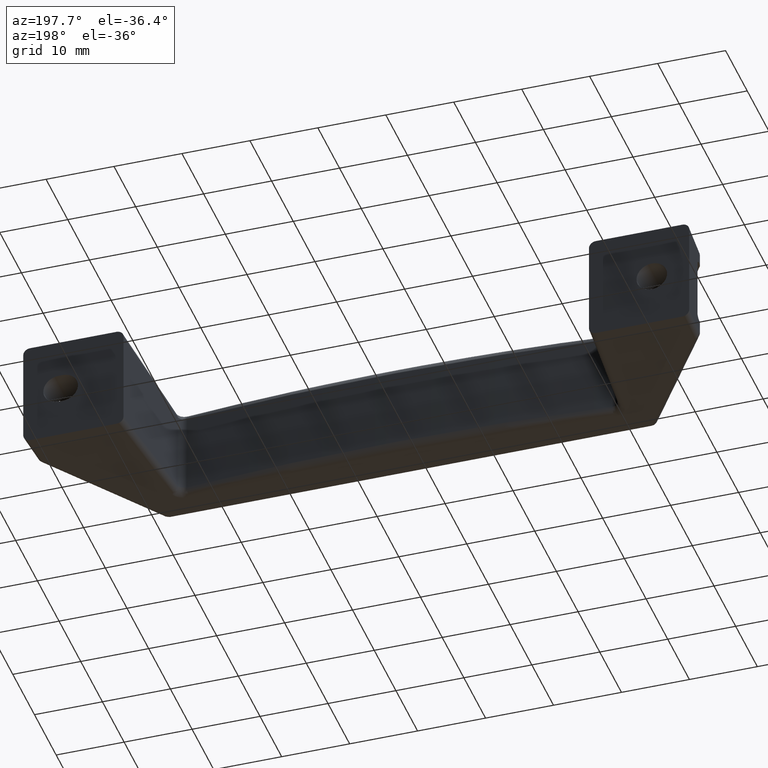
[diagram: clean part render]
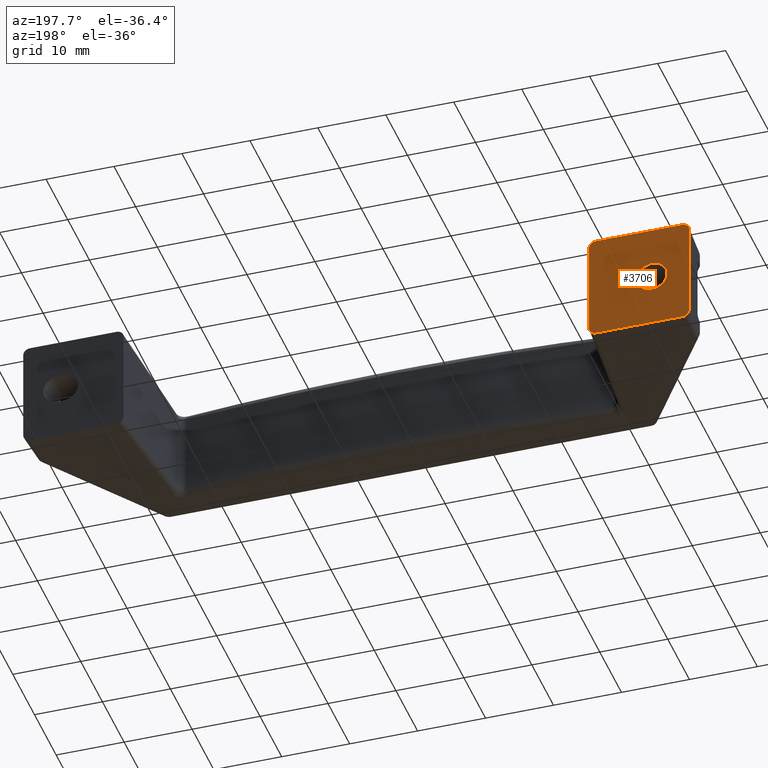
[diagram: same view with one face highlighted and labeled with its STEP entity id]
A machine part, auxiliary view. The second image highlights one B-rep face of the part: STEP entity #3706.
In plain terms, the highlighted face is a freeform B-spline surface patch.
Its self-contained STEP definition (entity closure, byte-faithful):
#79=CARTESIAN_POINT('',(-2.243064000891283,-1.387779E-017,0.176532965492541));
#80=VERTEX_POINT('',#79);
#86=CARTESIAN_POINT('',(0.0,0.0,2.250000000000000));
#87=VERTEX_POINT('',#86);
#88=CARTESIAN_POINT('',(0.0,0.0,2.250000000000000));
#89=CARTESIAN_POINT('',(-2.079878606035846,0.0,2.250000000000000));
#90=CARTESIAN_POINT('',(-2.243064000891283,-1.387779E-017,0.176532965492541));
#98=(BOUNDED_CURVE()B_SPLINE_CURVE(2,(#88,#89,#90),.UNSPECIFIED.,.F.,.U.)B_SPLINE_CURVE_WITH_KNOTS((3,3),(0.0,0.236331300616735),.UNSPECIFIED.)CURVE()GEOMETRIC_REPRESENTATION_ITEM()RATIONAL_B_SPLINE_CURVE((1.0,0.723120658623980,0.969723356138357))REPRESENTATION_ITEM(''));
#99=EDGE_CURVE('',#87,#80,#98,.T.);
#101=CARTESIAN_POINT('',(2.243064000891283,-1.387779E-017,-0.176532965492541));
#102=VERTEX_POINT('',#101);
#103=CARTESIAN_POINT('',(2.243064000891283,-1.387779E-017,-0.176532965492541));
#104=CARTESIAN_POINT('',(2.250000000000000,0.0,-0.088402740872633));
#105=CARTESIAN_POINT('',(2.250000000000000,0.0,0.0));
#106=CARTESIAN_POINT('',(2.250000000000000,0.0,2.250000000000000));
#107=CARTESIAN_POINT('',(0.0,0.0,2.250000000000000));
#115=(BOUNDED_CURVE()B_SPLINE_CURVE(2,(#103,#104,#105,#106,#107),.UNSPECIFIED.,.F.,.U.)B_SPLINE_CURVE_WITH_KNOTS((3,2,3),(0.736331300616735,0.750000000000000,1.0),.UNSPECIFIED.)CURVE()GEOMETRIC_REPRESENTATION_ITEM()RATIONAL_B_SPLINE_CURVE((0.969723356138357,0.983986122562568,1.0,0.707106781186547,1.0))REPRESENTATION_ITEM(''));
#116=EDGE_CURVE('',#102,#87,#115,.T.);
#192=CARTESIAN_POINT('',(0.0,0.0,-2.250000000000000));
#193=VERTEX_POINT('',#192);
#194=CARTESIAN_POINT('',(0.0,0.0,-2.250000000000000));
#195=CARTESIAN_POINT('',(2.079878606035845,0.0,-2.250000000000000));
#196=CARTESIAN_POINT('',(2.243064000891283,-1.387779E-017,-0.176532965492541));
#204=(BOUNDED_CURVE()B_SPLINE_CURVE(2,(#194,#195,#196),.UNSPECIFIED.,.F.,.U.)B_SPLINE_CURVE_WITH_KNOTS((3,3),(0.500000000000000,0.736331300616734),.UNSPECIFIED.)CURVE()GEOMETRIC_REPRESENTATION_ITEM()RATIONAL_B_SPLINE_CURVE((1.0,0.723120658623980,0.969723356138357))REPRESENTATION_ITEM(''));
#205=EDGE_CURVE('',#193,#102,#204,.T.);
#207=CARTESIAN_POINT('',(-2.243064000891283,-1.387779E-017,0.176532965492541));
#208=CARTESIAN_POINT('',(-2.250000000000000,0.0,0.088402740872633));
#209=CARTESIAN_POINT('',(-2.250000000000000,0.0,0.0));
#210=CARTESIAN_POINT('',(-2.250000000000000,0.0,-2.250000000000000));
#211=CARTESIAN_POINT('',(0.0,0.0,-2.250000000000000));
#219=(BOUNDED_CURVE()B_SPLINE_CURVE(2,(#207,#208,#209,#210,#211),.UNSPECIFIED.,.F.,.U.)B_SPLINE_CURVE_WITH_KNOTS((3,2,3),(0.236331300616735,0.250000000000000,0.500000000000000),.UNSPECIFIED.)CURVE()GEOMETRIC_REPRESENTATION_ITEM()RATIONAL_B_SPLINE_CURVE((0.969723356138357,0.983986122562568,1.0,0.707106781186547,1.0))REPRESENTATION_ITEM(''));
#220=EDGE_CURVE('',#80,#193,#219,.T.);
#1848=CARTESIAN_POINT('',(8.240335525935510,0.0,7.999999999999799));
#1849=VERTEX_POINT('',#1848);
#1850=CARTESIAN_POINT('',(9.249999999999821,0.0,6.993604590958550));
#1851=VERTEX_POINT('',#1850);
#1852=CARTESIAN_POINT('',(8.240335525935512,0.0,7.999999999999803));
#1853=CARTESIAN_POINT('',(8.657936385417250,0.0,7.999999999999813));
#1854=CARTESIAN_POINT('',(8.953968192708542,0.0,7.704926676691841));
#1855=CARTESIAN_POINT('',(9.249999999999831,0.0,7.409853353383870));
#1856=CARTESIAN_POINT('',(9.249999999999821,0.0,6.993604590958550));
#1864=(BOUNDED_CURVE()B_SPLINE_CURVE(2,(#1852,#1853,#1854,#1855,#1856),.UNSPECIFIED.,.F.,.U.)B_SPLINE_CURVE_WITH_KNOTS((3,2,3),(0.0,0.500000000000000,1.0),.UNSPECIFIED.)CURVE()GEOMETRIC_REPRESENTATION_ITEM()RATIONAL_B_SPLINE_CURVE((1.0,0.923398901999154,1.0,0.923398901999154,1.0))REPRESENTATION_ITEM(''));
#1865=EDGE_CURVE('',#1849,#1851,#1864,.T.);
#2203=CARTESIAN_POINT('',(9.249999999999821,0.0,-6.993604590958770));
#2204=VERTEX_POINT('',#2203);
#2205=CARTESIAN_POINT('',(8.240335525935510,0.0,-8.0));
#2206=VERTEX_POINT('',#2205);
#2207=CARTESIAN_POINT('',(9.249999999999821,0.0,-6.993604590958770));
#2208=CARTESIAN_POINT('',(9.249999999999796,0.0,-7.409853353384109));
#2209=CARTESIAN_POINT('',(8.953968192708512,0.0,-7.704926676692059));
#2210=CARTESIAN_POINT('',(8.657936385417228,0.0,-8.000000000000009));
#2211=CARTESIAN_POINT('',(8.240335525935508,0.0,-8.000000000000002));
#2219=(BOUNDED_CURVE()B_SPLINE_CURVE(2,(#2207,#2208,#2209,#2210,#2211),.UNSPECIFIED.,.F.,.U.)B_SPLINE_CURVE_WITH_KNOTS((3,2,3),(0.0,0.500000000000000,1.0),.UNSPECIFIED.)CURVE()GEOMETRIC_REPRESENTATION_ITEM()RATIONAL_B_SPLINE_CURVE((1.0,0.923398901999153,1.0,0.923398901999153,1.0))REPRESENTATION_ITEM(''));
#2220=EDGE_CURVE('',#2204,#2206,#2219,.T.);
#2798=CARTESIAN_POINT('',(-4.501370465219700,0.0,-8.0));
#2799=VERTEX_POINT('',#2798);
#2800=CARTESIAN_POINT('',(-5.499999999974079,0.0,-7.001370465245220));
#2801=VERTEX_POINT('',#2800);
#2802=CARTESIAN_POINT('',(-4.501370465219700,0.0,-8.0));
#2803=CARTESIAN_POINT('',(-5.499999999974446,0.0,-7.999999999999888));
#2804=CARTESIAN_POINT('',(-5.499999999974079,0.0,-7.001370465245220));
#2812=(BOUNDED_CURVE()B_SPLINE_CURVE(2,(#2802,#2803,#2804),.UNSPECIFIED.,.F.,.U.)CURVE()GEOMETRIC_REPRESENTATION_ITEM()QUASI_UNIFORM_CURVE()RATIONAL_B_SPLINE_CURVE((1.0,0.708074520200941,1.0))REPRESENTATION_ITEM(''));
#2813=EDGE_CURVE('',#2799,#2801,#2812,.T.);
#2933=CARTESIAN_POINT('',(-5.499999999974079,0.0,7.001370465244960));
#2934=VERTEX_POINT('',#2933);
#2935=CARTESIAN_POINT('',(-4.501370465219700,0.0,7.999999999999799));
#2936=VERTEX_POINT('',#2935);
#2937=CARTESIAN_POINT('',(-5.499999999974079,0.0,7.001370465244960));
#2938=CARTESIAN_POINT('',(-5.499999999974085,0.0,7.999999999999787));
#2939=CARTESIAN_POINT('',(-4.501370465219700,0.0,7.999999999999799));
#2947=(BOUNDED_CURVE()B_SPLINE_CURVE(2,(#2937,#2938,#2939),.UNSPECIFIED.,.F.,.U.)CURVE()GEOMETRIC_REPRESENTATION_ITEM()QUASI_UNIFORM_CURVE()RATIONAL_B_SPLINE_CURVE((1.0,0.708074520201014,1.0))REPRESENTATION_ITEM(''));
#2948=EDGE_CURVE('',#2934,#2936,#2947,.T.);
#3197=CARTESIAN_POINT('',(9.249999999999821,0.0,6.993604590958550));
#3198=CARTESIAN_POINT('',(9.249999999999821,0.0,-6.993604590958770));
#3199=QUASI_UNIFORM_CURVE('',1,(#3197,#3198),.UNSPECIFIED.,.F.,.U.);
#3200=EDGE_CURVE('',#1851,#2204,#3199,.T.);
#3376=CARTESIAN_POINT('',(8.240335525935510,0.0,-8.0));
#3377=CARTESIAN_POINT('',(-4.501370465219700,0.0,-8.0));
#3378=QUASI_UNIFORM_CURVE('',1,(#3376,#3377),.UNSPECIFIED.,.F.,.U.);
#3379=EDGE_CURVE('',#2206,#2799,#3378,.T.);
#3434=CARTESIAN_POINT('',(8.240335525935510,0.0,7.999999999999799));
#3435=CARTESIAN_POINT('',(-4.501370465219700,0.0,7.999999999999799));
#3436=QUASI_UNIFORM_CURVE('',1,(#3434,#3435),.UNSPECIFIED.,.F.,.U.);
#3437=EDGE_CURVE('',#1849,#2936,#3436,.T.);
#3617=CARTESIAN_POINT('',(-5.499999999974079,0.0,-7.001370465245220));
#3618=CARTESIAN_POINT('',(-5.499999999974079,0.0,7.001370465244960));
#3619=QUASI_UNIFORM_CURVE('',1,(#3617,#3618),.UNSPECIFIED.,.F.,.U.);
#3620=EDGE_CURVE('',#2801,#2934,#3619,.T.);
#3685=CARTESIAN_POINT('',(-6.236762471384413,0.0,8.799199968988685));
#3686=CARTESIAN_POINT('',(-6.236762471384413,0.0,-8.799200398142329));
#3687=CARTESIAN_POINT('',(9.986762867035987,0.0,8.799199968988685));
#3688=CARTESIAN_POINT('',(9.986762867035987,0.0,-8.799200398142329));
#3689=B_SPLINE_SURFACE_WITH_KNOTS('',1,1,((#3685,#3687),(#3686,#3688)),.UNSPECIFIED.,.F.,.F.,.U.,(2,2),(2,2),(0.0,17.598400367131010),(0.0,16.223525338420401),.UNSPECIFIED.);
#3690=ORIENTED_EDGE('',*,*,#3379,.T.);
#3691=ORIENTED_EDGE('',*,*,#2813,.T.);
#3692=ORIENTED_EDGE('',*,*,#3620,.T.);
#3693=ORIENTED_EDGE('',*,*,#2948,.T.);
#3694=ORIENTED_EDGE('',*,*,#3437,.F.);
#3695=ORIENTED_EDGE('',*,*,#1865,.T.);
#3696=ORIENTED_EDGE('',*,*,#3200,.T.);
#3697=ORIENTED_EDGE('',*,*,#2220,.T.);
#3698=EDGE_LOOP('',(#3690,#3691,#3692,#3693,#3694,#3695,#3696,#3697));
#3699=FACE_OUTER_BOUND('',#3698,.T.);
#3700=ORIENTED_EDGE('',*,*,#205,.T.);
#3701=ORIENTED_EDGE('',*,*,#116,.T.);
#3702=ORIENTED_EDGE('',*,*,#99,.T.);
#3703=ORIENTED_EDGE('',*,*,#220,.T.);
#3704=EDGE_LOOP('',(#3700,#3701,#3702,#3703));
#3705=FACE_BOUND('',#3704,.T.);
#3706=ADVANCED_FACE('',(#3699,#3705),#3689,.F.);